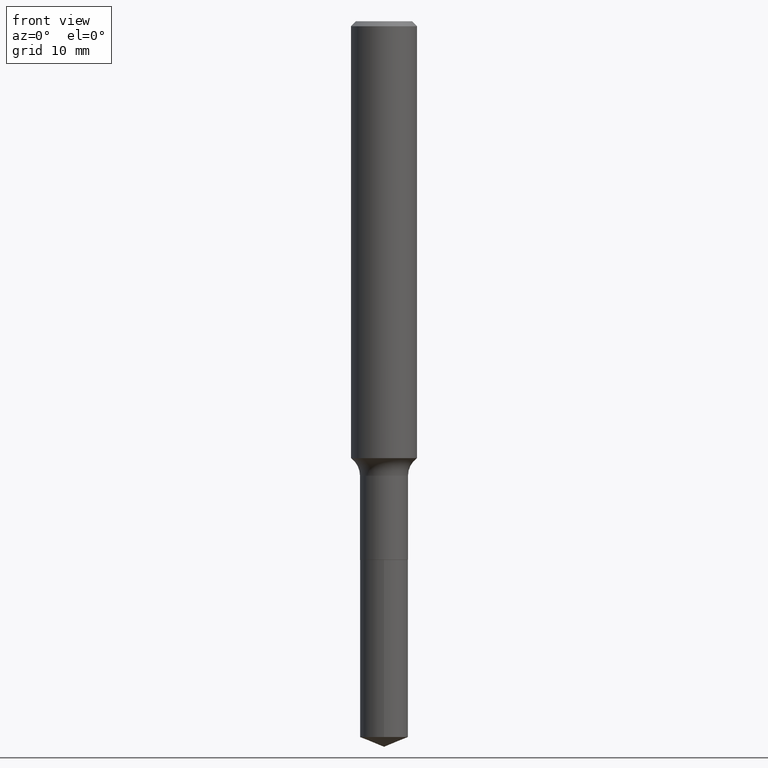
[diagram: clean part render]
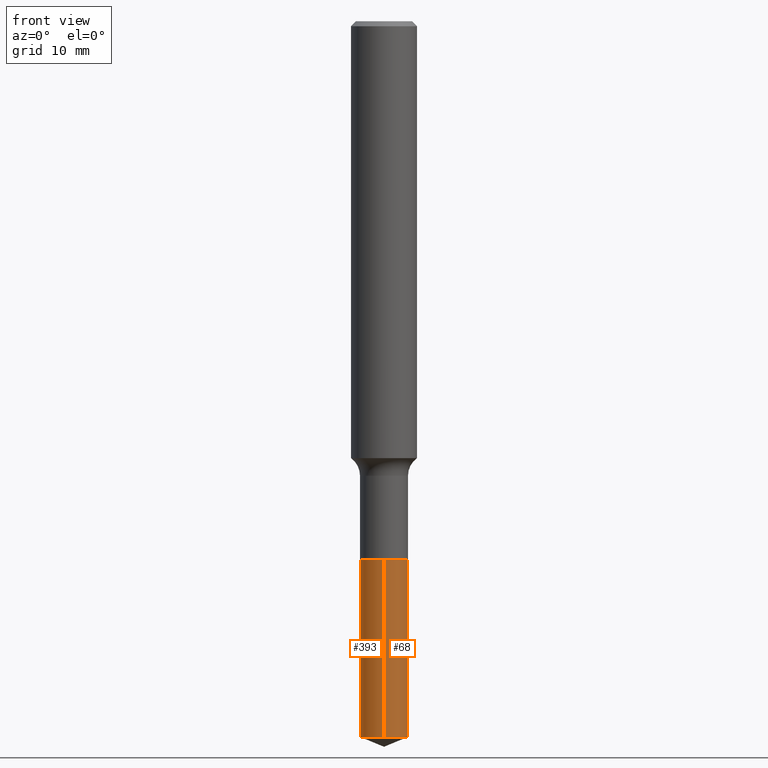
[diagram: same view with one multi-face feature highlighted, each face labeled with its STEP entity id]
A machine part, front view. The highlighted faces form ONE feature: a constant-radius fillet chain: 2 tangent blend faces with common blend radius 2.1831 mm. The faces share edges in the B-rep.
Their STEP definitions:
[1] entity #393 (Cylinder):
#1 = DIRECTION ( 'NONE',  ( -6.982962677686266711E-15, -1.000000000000000000, 6.356830700789444137E-15 ) ) ;
#7 = LINE ( 'NONE', #115, #301 ) ;
#46 = CARTESIAN_POINT ( 'NONE',  ( -6.001856421470872890E-16, -0.08595000000000671547, -1.929099999999999593 ) ) ;
#74 = DIRECTION ( 'NONE',  ( -6.982962677686266711E-15, -1.000000000000000000, 3.178415350394722068E-15 ) ) ;
#86 = LINE ( 'NONE', #46, #169 ) ;
#89 = AXIS2_PLACEMENT_3D ( 'NONE', #265, #457, #74 ) ;
#109 = DIRECTION ( 'NONE',  ( -2.445416049279205825E-29, 3.491556889735175103E-15, 1.000000000000000000 ) ) ;
#110 = CARTESIAN_POINT ( 'NONE',  ( 4.717553874011746679E-29, -6.735416650762311704E-15, -1.929099999999999815 ) ) ;
#115 = CARTESIAN_POINT ( 'NONE',  ( 6.107114813858531358E-16, 0.08594999999999326790, -1.929100000000000259 ) ) ;
#130 = ORIENTED_EDGE ( 'NONE', *, *, #246, .T. ) ;
#169 = VECTOR ( 'NONE', #242, 39.37007874015748143 ) ;
#186 = EDGE_CURVE ( 'NONE', #245, #247, #385, .T. ) ;
#194 = EDGE_CURVE ( 'NONE', #336, #245, #7, .T. ) ;
#206 = CARTESIAN_POINT ( 'NONE',  ( 6.107114813858688144E-16, 0.08594999999999326790, -1.929100000000000259 ) ) ;
#242 = DIRECTION ( 'NONE',  ( -2.445416049279205825E-29, 3.491556889735175498E-15, 1.000000000000000000 ) ) ;
#245 = VERTEX_POINT ( 'NONE', #206 ) ;
#246 = EDGE_CURVE ( 'NONE', #478, #247, #86, .T. ) ;
#247 = VERTEX_POINT ( 'NONE', #352 ) ;
#250 = CYLINDRICAL_SURFACE ( 'NONE', #89, 0.08594999999999998475 ) ;
#265 = CARTESIAN_POINT ( 'NONE',  ( 4.717553874011746679E-29, -6.735416650762311704E-15, -1.929099999999999815 ) ) ;
#269 = DIRECTION ( 'NONE',  ( -6.982962677686266711E-15, -1.000000000000000000, 3.178415350394722068E-15 ) ) ;
#272 = DIRECTION ( 'NONE',  ( -2.445416049279205825E-29, 3.491556889735175498E-15, 1.000000000000000000 ) ) ;
#276 = DIRECTION ( 'NONE',  ( -2.445416049279205825E-29, 3.491556889735175103E-15, 1.000000000000000000 ) ) ;
#301 = VECTOR ( 'NONE', #272, 39.37007874015748143 ) ;
#308 = EDGE_CURVE ( 'NONE', #336, #478, #414, .T. ) ;
#336 = VERTEX_POINT ( 'NONE', #479 ) ;
#348 = AXIS2_PLACEMENT_3D ( 'NONE', #110, #276, #269 ) ;
#352 = CARTESIAN_POINT ( 'NONE',  ( -6.001856421470872890E-16, -0.08595000000000671547, -1.929099999999999593 ) ) ;
#356 = FACE_OUTER_BOUND ( 'NONE', #433, .T. ) ;
#370 = ORIENTED_EDGE ( 'NONE', *, *, #186, .F. ) ;
#380 = CARTESIAN_POINT ( 'NONE',  ( 6.269351185744286902E-29, -8.951067683579122812E-15, -2.563673945889468619 ) ) ;
#381 = CARTESIAN_POINT ( 'NONE',  ( -6.001856421470718076E-16, -0.08595000000000893592, -2.563673945889467731 ) ) ;
#385 = CIRCLE ( 'NONE', #348, 0.08594999999999998475 ) ;
#393 = ADVANCED_FACE ( 'NONE', ( #356 ), #250, .T. ) ;
#414 = CIRCLE ( 'NONE', #423, 0.08594999999999998475 ) ;
#423 = AXIS2_PLACEMENT_3D ( 'NONE', #380, #109, #1 ) ;
#430 = ORIENTED_EDGE ( 'NONE', *, *, #308, .T. ) ;
#433 = EDGE_LOOP ( 'NONE', ( #445, #430, #130, #370 ) ) ;
#445 = ORIENTED_EDGE ( 'NONE', *, *, #194, .F. ) ;
#457 = DIRECTION ( 'NONE',  ( -2.445416049279205825E-29, 3.491556889735175103E-15, 1.000000000000000000 ) ) ;
#478 = VERTEX_POINT ( 'NONE', #381 ) ;
#479 = CARTESIAN_POINT ( 'NONE',  ( 6.107114813858686172E-16, 0.08594999999999104745, -2.563673945889469064 ) ) ;
[2] entity #68 (Cylinder):
#7 = LINE ( 'NONE', #115, #301 ) ;
#20 = AXIS2_PLACEMENT_3D ( 'NONE', #428, #204, #166 ) ;
#28 = CIRCLE ( 'NONE', #20, 0.08594999999999998475 ) ;
#34 = DIRECTION ( 'NONE',  ( -6.982962677686266711E-15, -1.000000000000000000, 3.178415350394722068E-15 ) ) ;
#36 = AXIS2_PLACEMENT_3D ( 'NONE', #374, #411, #34 ) ;
#46 = CARTESIAN_POINT ( 'NONE',  ( -6.001856421470872890E-16, -0.08595000000000671547, -1.929099999999999593 ) ) ;
#68 = ADVANCED_FACE ( 'NONE', ( #268 ), #161, .T. ) ;
#71 = DIRECTION ( 'NONE',  ( -6.982962677686266711E-15, -1.000000000000000000, 3.178415350394722068E-15 ) ) ;
#86 = LINE ( 'NONE', #46, #169 ) ;
#91 = EDGE_CURVE ( 'NONE', #247, #245, #431, .T. ) ;
#101 = ORIENTED_EDGE ( 'NONE', *, *, #261, .T. ) ;
#103 = AXIS2_PLACEMENT_3D ( 'NONE', #303, #305, #71 ) ;
#115 = CARTESIAN_POINT ( 'NONE',  ( 6.107114813858531358E-16, 0.08594999999999326790, -1.929100000000000259 ) ) ;
#161 = CYLINDRICAL_SURFACE ( 'NONE', #103, 0.08594999999999998475 ) ;
#166 = DIRECTION ( 'NONE',  ( -6.982962677686266711E-15, -1.000000000000000000, 6.356830700789444137E-15 ) ) ;
#169 = VECTOR ( 'NONE', #242, 39.37007874015748143 ) ;
#194 = EDGE_CURVE ( 'NONE', #336, #245, #7, .T. ) ;
#204 = DIRECTION ( 'NONE',  ( -2.445416049279205825E-29, 3.491556889735175103E-15, 1.000000000000000000 ) ) ;
#206 = CARTESIAN_POINT ( 'NONE',  ( 6.107114813858688144E-16, 0.08594999999999326790, -1.929100000000000259 ) ) ;
#217 = ORIENTED_EDGE ( 'NONE', *, *, #194, .T. ) ;
#242 = DIRECTION ( 'NONE',  ( -2.445416049279205825E-29, 3.491556889735175498E-15, 1.000000000000000000 ) ) ;
#245 = VERTEX_POINT ( 'NONE', #206 ) ;
#246 = EDGE_CURVE ( 'NONE', #478, #247, #86, .T. ) ;
#247 = VERTEX_POINT ( 'NONE', #352 ) ;
#261 = EDGE_CURVE ( 'NONE', #478, #336, #28, .T. ) ;
#268 = FACE_OUTER_BOUND ( 'NONE', #394, .T. ) ;
#272 = DIRECTION ( 'NONE',  ( -2.445416049279205825E-29, 3.491556889735175498E-15, 1.000000000000000000 ) ) ;
#298 = ORIENTED_EDGE ( 'NONE', *, *, #246, .F. ) ;
#301 = VECTOR ( 'NONE', #272, 39.37007874015748143 ) ;
#303 = CARTESIAN_POINT ( 'NONE',  ( 4.717553874011746679E-29, -6.735416650762311704E-15, -1.929099999999999815 ) ) ;
#305 = DIRECTION ( 'NONE',  ( -2.445416049279205825E-29, 3.491556889735175103E-15, 1.000000000000000000 ) ) ;
#336 = VERTEX_POINT ( 'NONE', #479 ) ;
#352 = CARTESIAN_POINT ( 'NONE',  ( -6.001856421470872890E-16, -0.08595000000000671547, -1.929099999999999593 ) ) ;
#374 = CARTESIAN_POINT ( 'NONE',  ( 4.717553874011746679E-29, -6.735416650762311704E-15, -1.929099999999999815 ) ) ;
#381 = CARTESIAN_POINT ( 'NONE',  ( -6.001856421470718076E-16, -0.08595000000000893592, -2.563673945889467731 ) ) ;
#391 = ORIENTED_EDGE ( 'NONE', *, *, #91, .F. ) ;
#394 = EDGE_LOOP ( 'NONE', ( #101, #217, #391, #298 ) ) ;
#411 = DIRECTION ( 'NONE',  ( -2.445416049279205825E-29, 3.491556889735175103E-15, 1.000000000000000000 ) ) ;
#428 = CARTESIAN_POINT ( 'NONE',  ( 6.269351185744286902E-29, -8.951067683579122812E-15, -2.563673945889468619 ) ) ;
#431 = CIRCLE ( 'NONE', #36, 0.08594999999999998475 ) ;
#478 = VERTEX_POINT ( 'NONE', #381 ) ;
#479 = CARTESIAN_POINT ( 'NONE',  ( 6.107114813858686172E-16, 0.08594999999999104745, -2.563673945889469064 ) ) ;